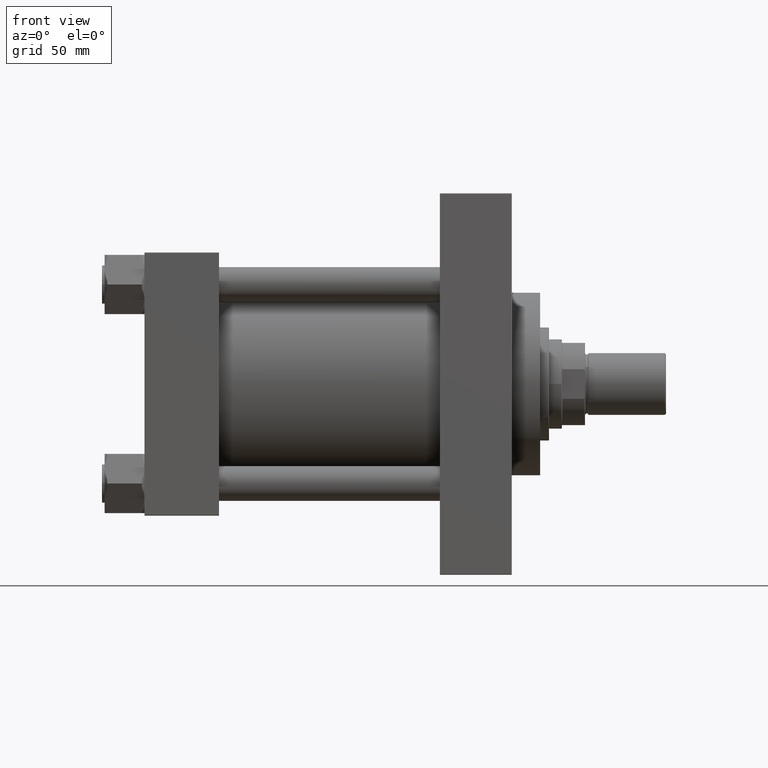
[diagram: clean part render]
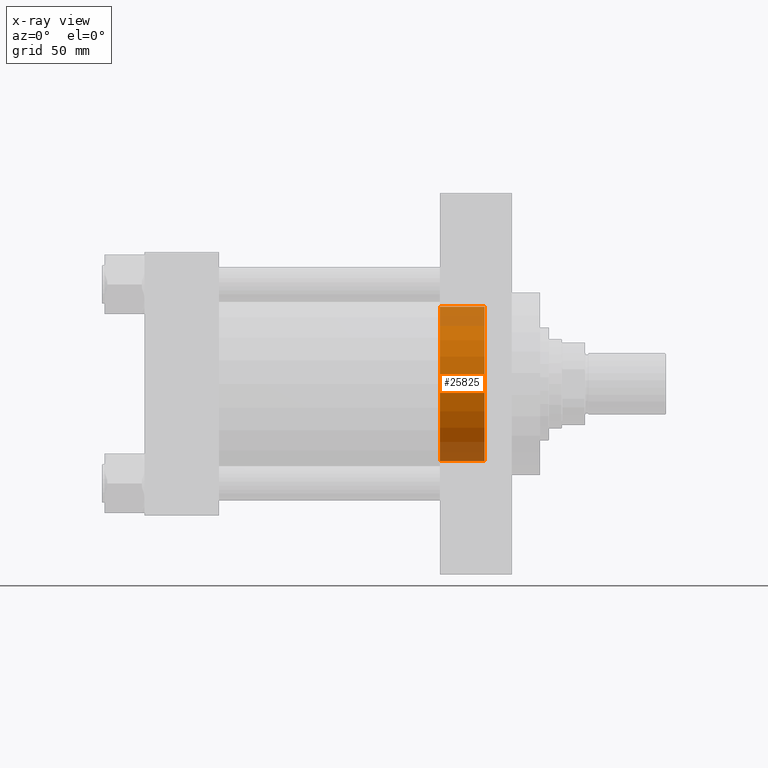
[diagram: x-ray — body ghosted, one internal face saturated and labeled with its STEP entity id]
A machine part, front view, then the same camera in x-ray: the body is ghosted and one INTERNAL B-rep face — a face not visible from any outside direction — is saturated and labeled: STEP entity #25825.
In plain terms, the highlighted cylindrical surface (partial cylindrical patch) has radius 60 mm, axis along (1, 0, 0).
Its self-contained STEP definition (entity closure, byte-faithful):
#762 = VECTOR ( 'NONE', #24676, 1000.000000000000000 ) ;
#4321 = VERTEX_POINT ( 'NONE', #6309 ) ;
#6309 = CARTESIAN_POINT ( 'NONE',  ( 229.9999999999999716, 0.000000000000000000, -60.00000000000000000 ) ) ;
#6659 = LINE ( 'NONE', #36578, #762 ) ;
#7316 = ORIENTED_EDGE ( 'NONE', *, *, #44463, .T. ) ;
#9876 = VERTEX_POINT ( 'NONE', #20321 ) ;
#14515 = ORIENTED_EDGE ( 'NONE', *, *, #26299, .T. ) ;
#14518 = CARTESIAN_POINT ( 'NONE',  ( 264.7399999999999523, 0.000000000000000000, 0.000000000000000000 ) ) ;
#15170 = AXIS2_PLACEMENT_3D ( 'NONE', #14518, #29335, #38612 ) ;
#15215 = LINE ( 'NONE', #41024, #28958 ) ;
#15468 = DIRECTION ( 'NONE',  ( -1.000000000000000000, 0.000000000000000000, -0.000000000000000000 ) ) ;
#17016 = CARTESIAN_POINT ( 'NONE',  ( -111.7056274847714121, 0.000000000000000000, 0.000000000000000000 ) ) ;
#18508 = EDGE_CURVE ( 'NONE', #4321, #9876, #15215, .T. ) ;
#19838 = CIRCLE ( 'NONE', #15170, 60.00000000000000000 ) ;
#20321 = CARTESIAN_POINT ( 'NONE',  ( 264.7399999999999523, 0.000000000000000000, -60.00000000000000000 ) ) ;
#20437 = EDGE_LOOP ( 'NONE', ( #14515, #7316, #43677, #37411 ) ) ;
#21790 = VERTEX_POINT ( 'NONE', #25821 ) ;
#24356 = EDGE_CURVE ( 'NONE', #21790, #9876, #19838, .T. ) ;
#24676 = DIRECTION ( 'NONE',  ( 1.000000000000000000, -0.000000000000000000, -0.000000000000000000 ) ) ;
#25821 = CARTESIAN_POINT ( 'NONE',  ( 264.7399999999999523, 7.347880794884118356E-15, 60.00000000000000000 ) ) ;
#25825 = ADVANCED_FACE ( 'NONE', ( #32078 ), #35501, .F. ) ;
#26299 = EDGE_CURVE ( 'NONE', #4321, #44409, #43901, .T. ) ;
#27369 = CARTESIAN_POINT ( 'NONE',  ( 229.9999999999999716, 0.000000000000000000, 0.000000000000000000 ) ) ;
#28427 = DIRECTION ( 'NONE',  ( 1.000000000000000000, -0.000000000000000000, -0.000000000000000000 ) ) ;
#28552 = CARTESIAN_POINT ( 'NONE',  ( 229.9999999999999716, 7.347880794884118356E-15, 60.00000000000000000 ) ) ;
#28958 = VECTOR ( 'NONE', #37337, 1000.000000000000000 ) ;
#29335 = DIRECTION ( 'NONE',  ( 1.000000000000000000, 0.000000000000000000, 0.000000000000000000 ) ) ;
#31846 = DIRECTION ( 'NONE',  ( 0.000000000000000000, 0.000000000000000000, -1.000000000000000000 ) ) ;
#32078 = FACE_OUTER_BOUND ( 'NONE', #20437, .T. ) ;
#33767 = AXIS2_PLACEMENT_3D ( 'NONE', #27369, #15468, #34440 ) ;
#34440 = DIRECTION ( 'NONE',  ( 0.000000000000000000, 0.000000000000000000, 1.000000000000000000 ) ) ;
#35501 = CYLINDRICAL_SURFACE ( 'NONE', #36054, 60.00000000000000000 ) ;
#36054 = AXIS2_PLACEMENT_3D ( 'NONE', #17016, #28427, #31846 ) ;
#36578 = CARTESIAN_POINT ( 'NONE',  ( -111.7056274847714121, 7.347880794884118356E-15, 60.00000000000000000 ) ) ;
#37337 = DIRECTION ( 'NONE',  ( 1.000000000000000000, -0.000000000000000000, -0.000000000000000000 ) ) ;
#37411 = ORIENTED_EDGE ( 'NONE', *, *, #18508, .F. ) ;
#38612 = DIRECTION ( 'NONE',  ( 0.000000000000000000, 0.000000000000000000, -1.000000000000000000 ) ) ;
#41024 = CARTESIAN_POINT ( 'NONE',  ( -111.7056274847714121, 0.000000000000000000, -60.00000000000000000 ) ) ;
#43677 = ORIENTED_EDGE ( 'NONE', *, *, #24356, .T. ) ;
#43901 = CIRCLE ( 'NONE', #33767, 60.00000000000000000 ) ;
#44409 = VERTEX_POINT ( 'NONE', #28552 ) ;
#44463 = EDGE_CURVE ( 'NONE', #44409, #21790, #6659, .T. ) ;